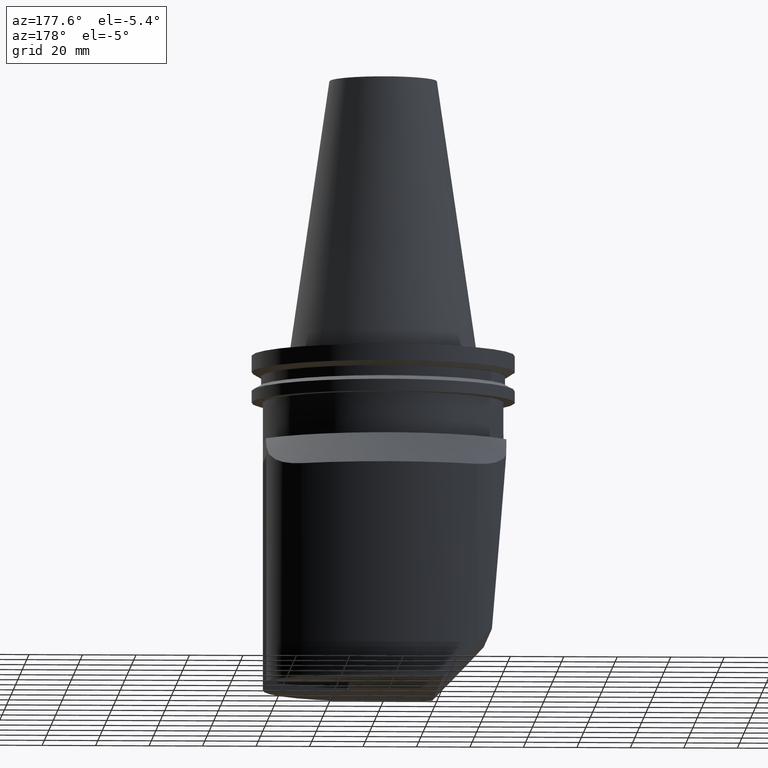
[diagram: clean part render]
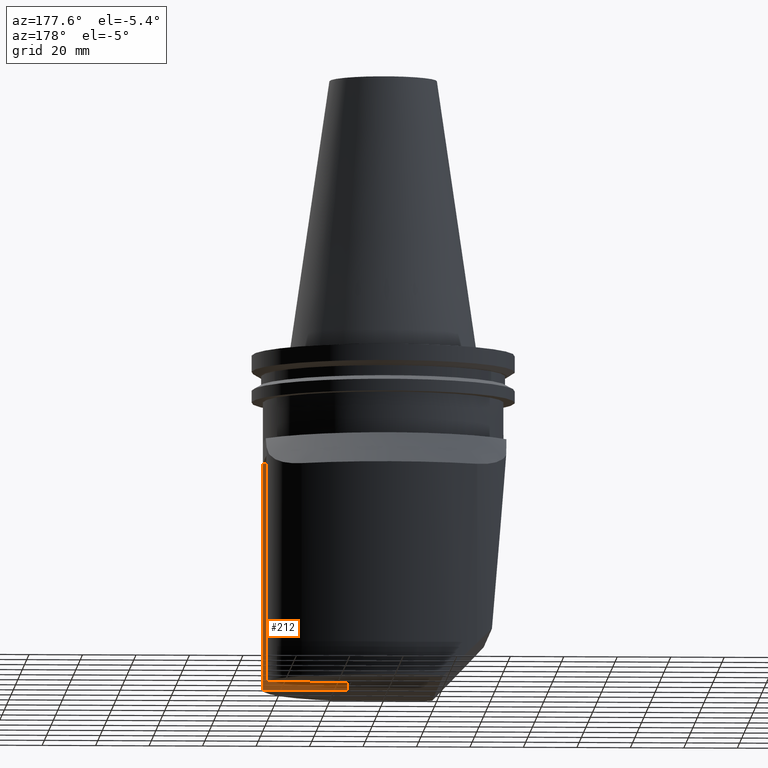
[diagram: same view with one face highlighted and labeled with its STEP entity id]
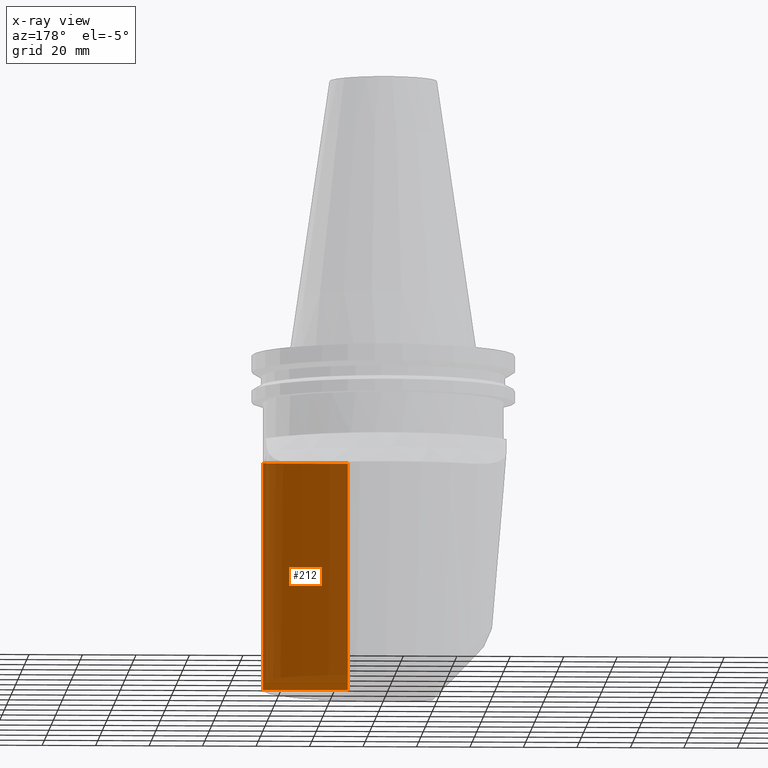
[diagram: x-ray of the same camera — body ghosted, the highlighted face saturated]
A machine part, auxiliary view. The second image highlights one B-rep face of the part: STEP entity #212.
The next image is the same camera in x-ray: the body ghosted, the highlighted face saturated — about 92% of this face is hidden behind the body in this view.
In plain terms, the highlighted planar face has unit normal (-0, -1, 0).
Its self-contained STEP definition (entity closure, byte-faithful):
#114=EDGE_CURVE('Unnamed[1]',#316,#317,#318,.T.);
#190=EDGE_CURVE('Unnamed[1]',#303,#367,#432,.T.);
#192=EDGE_CURVE('Unnamed[1]',#303,#317,#434,.T.);
#209=EDGE_CURVE('Unnamed[1]',#316,#367,#456,.T.);
#212=ADVANCED_FACE('Unnamed[1]',(#459),#460,.F.);
#303=VERTEX_POINT('',#583);
#316=VERTEX_POINT('',#601);
#317=VERTEX_POINT('',#602);
#318=LINE('',#603,#604);
#367=VERTEX_POINT('',#671);
#432=LINE('',#765,#766);
#434=LINE('',#769,#770);
#456=LINE('',#801,#802);
#459=FACE_OUTER_BOUND('',#806,.T.);
#460=PLANE('',#807);
#583=CARTESIAN_POINT('',(44.9999999999994,1.5969213240997E-013,-42.0000000000003));
#601=CARTESIAN_POINT('',(13.2499999999989,3.87693439337765E-013,-127.0));
#602=CARTESIAN_POINT('',(13.2499999999989,3.92898188234141E-013,-42.0000000000003));
#603=CARTESIAN_POINT('',(13.249999999999,3.78324891324288E-013,-279.999999999998));
#604=VECTOR('',#966,1.0);
#671=CARTESIAN_POINT('',(44.9999999999994,1.46188601731218E-012,-127.0));
#765=CARTESIAN_POINT('',(44.9999999999994,1.4525174692987E-012,-279.999999999998));
#766=VECTOR('',#1097,1.0);
#769=CARTESIAN_POINT('',(44.9999999999994,1.5969213240997E-013,-42.0000000000003));
#770=VECTOR('',#1098,1.0);
#801=CARTESIAN_POINT('',(30.5624999999998,2.60531869528124E-013,-127.0));
#802=VECTOR('',#1130,1.0);
#806=EDGE_LOOP('',(#1132,#1133,#1134,#1135));
#807=AXIS2_PLACEMENT_3D('',#1136,#1137,#1138);
#966=DIRECTION('',(-1.22464679914735E-016,6.12323399573677E-017,1.0));
#1097=DIRECTION('',(1.22464679914735E-016,-6.12323399573677E-017,-1.0));
#1098=DIRECTION('',(-1.0,7.34507262438325E-015,-1.22464679914736E-016));
#1130=DIRECTION('',(1.0,-7.34507262438325E-015,-8.75931951708657E-015));
#1132=ORIENTED_EDGE('',*,*,#209,.F.);
#1133=ORIENTED_EDGE('',*,*,#114,.T.);
#1134=ORIENTED_EDGE('',*,*,#192,.F.);
#1135=ORIENTED_EDGE('',*,*,#190,.T.);
#1136=CARTESIAN_POINT('',(29.1249999999992,2.61721863412202E-013,-279.999999999998));
#1137=DIRECTION('',(-7.34507262438325E-015,-1.0,6.12323399573668E-017));
#1138=DIRECTION('',(-1.0,7.34507262438325E-015,-1.22464679914736E-016));